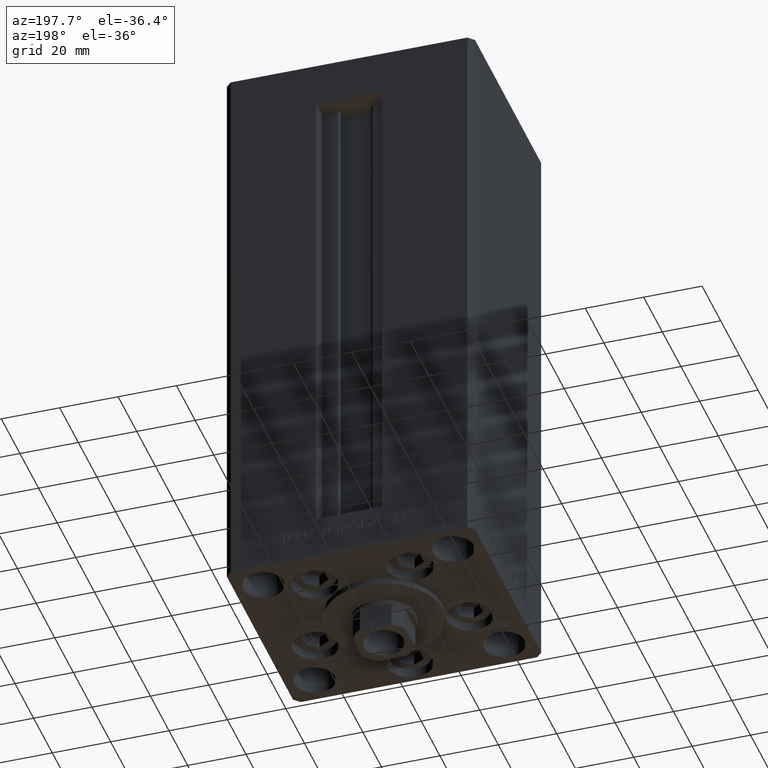
[diagram: clean part render]
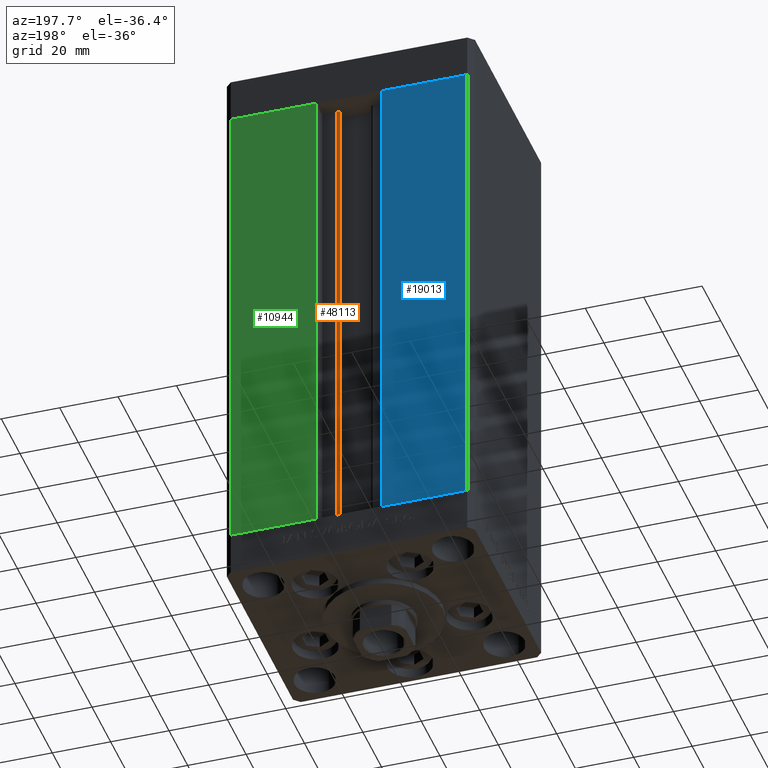
[diagram: same view with three faces highlighted in distinct colors, each labeled with its STEP entity id]
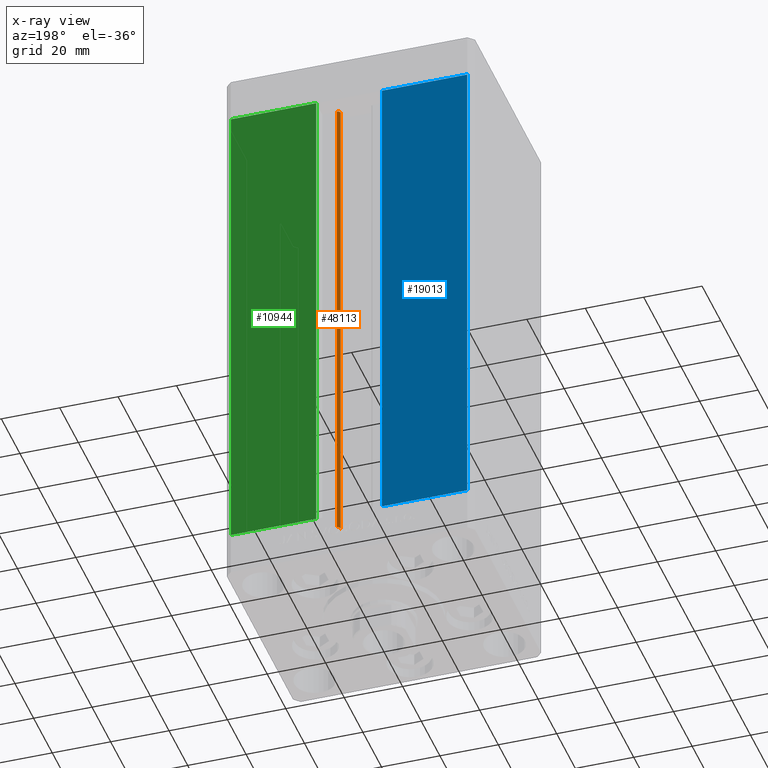
[diagram: x-ray of the same camera — body ghosted, the three highlighted faces saturated]
A machine part, auxiliary view with three faces highlighted in distinct colors.
The next image is the same camera in x-ray (body ghosted, the three faces saturated) — at least one of them is partly hidden behind the body in this view.
Their STEP definitions:

[orange] entity #48113 — the highlighted cylindrical surface (edge-blend (fillet) strip) has radius 0.9333 mm, axis along (0, 0, 1).
#1290 = FACE_OUTER_BOUND ( 'NONE', #26084, .T. ) ;
#1697 = CIRCLE ( 'NONE', #47542, 0.9333333333340015914 ) ;
#2614 = CARTESIAN_POINT ( 'NONE',  ( 6.183333333333999704, 30.06666666666599141, 168.5000000000000000 ) ) ;
#2852 = DIRECTION ( 'NONE',  ( 0.000000000000000000, 0.000000000000000000, -1.000000000000000000 ) ) ;
#3748 = ORIENTED_EDGE ( 'NONE', *, *, #39921, .T. ) ;
#4786 = AXIS2_PLACEMENT_3D ( 'NONE', #32641, #39840, #28910 ) ;
#6221 = ORIENTED_EDGE ( 'NONE', *, *, #34371, .F. ) ;
#6519 = VERTEX_POINT ( 'NONE', #45284 ) ;
#10560 = DIRECTION ( 'NONE',  ( -0.000000000000000000, -0.000000000000000000, 1.000000000000000000 ) ) ;
#10775 = DIRECTION ( 'NONE',  ( 1.000000000000000000, 0.000000000000000000, 0.000000000000000000 ) ) ;
#13931 = VERTEX_POINT ( 'NONE', #23306 ) ;
#16375 = CARTESIAN_POINT ( 'NONE',  ( 6.183333333333999704, 30.06666666666599141, 0.000000000000000000 ) ) ;
#16648 = DIRECTION ( 'NONE',  ( -0.000000000000000000, -0.000000000000000000, 1.000000000000000000 ) ) ;
#17327 = VECTOR ( 'NONE', #16648, 1000.000000000000000 ) ;
#17794 = VERTEX_POINT ( 'NONE', #46589 ) ;
#19815 = CIRCLE ( 'NONE', #4786, 0.9333333333340015914 ) ;
#21946 = CARTESIAN_POINT ( 'NONE',  ( 5.375042956467943611, 29.59999999999899245, 0.000000000000000000 ) ) ;
#23306 = CARTESIAN_POINT ( 'NONE',  ( 5.375042956467944499, 29.59999999999898890, 168.5000000000000000 ) ) ;
#23349 = ORIENTED_EDGE ( 'NONE', *, *, #42219, .T. ) ;
#23657 = ORIENTED_EDGE ( 'NONE', *, *, #38074, .F. ) ;
#26084 = EDGE_LOOP ( 'NONE', ( #6221, #23657, #23349, #3748 ) ) ;
#28910 = DIRECTION ( 'NONE',  ( 1.000000000000000000, 0.000000000000000000, 0.000000000000000000 ) ) ;
#29871 = LINE ( 'NONE', #21946, #34893 ) ;
#31485 = DIRECTION ( 'NONE',  ( 1.000000000000000000, 0.000000000000000000, 0.000000000000000000 ) ) ;
#32641 = CARTESIAN_POINT ( 'NONE',  ( 6.183333333333999704, 30.06666666666599141, 0.000000000000000000 ) ) ;
#34371 = EDGE_CURVE ( 'NONE', #38234, #17794, #42674, .T. ) ;
#34893 = VECTOR ( 'NONE', #10560, 1000.000000000000000 ) ;
#36196 = CARTESIAN_POINT ( 'NONE',  ( 6.183333333333999704, 30.99999999999999289, 0.000000000000000000 ) ) ;
#38074 = EDGE_CURVE ( 'NONE', #6519, #38234, #19815, .T. ) ;
#38204 = CYLINDRICAL_SURFACE ( 'NONE', #42164, 0.9333333333340015914 ) ;
#38234 = VERTEX_POINT ( 'NONE', #42786 ) ;
#38699 = DIRECTION ( 'NONE',  ( -0.000000000000000000, -0.000000000000000000, 1.000000000000000000 ) ) ;
#39840 = DIRECTION ( 'NONE',  ( -0.000000000000000000, -0.000000000000000000, -1.000000000000000000 ) ) ;
#39921 = EDGE_CURVE ( 'NONE', #13931, #17794, #1697, .T. ) ;
#42164 = AXIS2_PLACEMENT_3D ( 'NONE', #16375, #38699, #31485 ) ;
#42219 = EDGE_CURVE ( 'NONE', #6519, #13931, #29871, .T. ) ;
#42674 = LINE ( 'NONE', #36196, #17327 ) ;
#42786 = CARTESIAN_POINT ( 'NONE',  ( 6.183333333333999704, 30.99999999999999289, 0.000000000000000000 ) ) ;
#45284 = CARTESIAN_POINT ( 'NONE',  ( 5.375042956467943611, 29.59999999999899245, 0.000000000000000000 ) ) ;
#46589 = CARTESIAN_POINT ( 'NONE',  ( 6.183333333333999704, 30.99999999999999289, 168.5000000000000000 ) ) ;
#47542 = AXIS2_PLACEMENT_3D ( 'NONE', #2614, #2852, #10775 ) ;
#48113 = ADVANCED_FACE ( 'NONE', ( #1290 ), #38204, .T. ) ;

[blue] entity #19013 — the highlighted planar face has unit normal (-0, -1, 0).
#219 = LINE ( 'NONE', #42309, #2911 ) ;
#612 = DIRECTION ( 'NONE',  ( -0.000000000000000000, -0.000000000000000000, 1.000000000000000000 ) ) ;
#935 = DIRECTION ( 'NONE',  ( -0.000000000000000000, -0.000000000000000000, -1.000000000000000000 ) ) ;
#1512 = EDGE_CURVE ( 'NONE', #44774, #25458, #45181, .T. ) ;
#2109 = EDGE_CURVE ( 'NONE', #6078, #30039, #19974, .T. ) ;
#2911 = VECTOR ( 'NONE', #30415, 1000.000000000000000 ) ;
#3335 = CARTESIAN_POINT ( 'NONE',  ( -11.25000000000000000, 37.50000000000000000, 168.5000000000000000 ) ) ;
#5331 = DIRECTION ( 'NONE',  ( 1.000000000000000000, -2.372271420139223331E-16, 0.000000000000000000 ) ) ;
#6078 = VERTEX_POINT ( 'NONE', #7208 ) ;
#7208 = CARTESIAN_POINT ( 'NONE',  ( -40.50000000000000000, 37.50000000000000711, 168.5000000000000000 ) ) ;
#11746 = LINE ( 'NONE', #3335, #18305 ) ;
#13012 = FACE_OUTER_BOUND ( 'NONE', #24192, .T. ) ;
#14192 = AXIS2_PLACEMENT_3D ( 'NONE', #42265, #39276, #5331 ) ;
#14935 = CARTESIAN_POINT ( 'NONE',  ( -11.25000000000000000, 37.50000000000000000, 168.5000000000000000 ) ) ;
#15217 = CARTESIAN_POINT ( 'NONE',  ( -11.25000000000000000, 37.50000000000000000, 0.000000000000000000 ) ) ;
#15379 = VECTOR ( 'NONE', #935, 1000.000000000000000 ) ;
#16036 = CARTESIAN_POINT ( 'NONE',  ( -40.50000000000000000, 37.50000000000000711, 0.000000000000000000 ) ) ;
#18305 = VECTOR ( 'NONE', #30558, 1000.000000000000000 ) ;
#19013 = ADVANCED_FACE ( 'NONE', ( #13012 ), #42757, .F. ) ;
#19974 = LINE ( 'NONE', #34359, #15379 ) ;
#21271 = ORIENTED_EDGE ( 'NONE', *, *, #1512, .F. ) ;
#24048 = VECTOR ( 'NONE', #612, 1000.000000000000000 ) ;
#24192 = EDGE_LOOP ( 'NONE', ( #39796, #21271, #26679, #44167 ) ) ;
#25458 = VERTEX_POINT ( 'NONE', #14935 ) ;
#26097 = EDGE_CURVE ( 'NONE', #44774, #30039, #219, .T. ) ;
#26679 = ORIENTED_EDGE ( 'NONE', *, *, #26097, .T. ) ;
#30039 = VERTEX_POINT ( 'NONE', #16036 ) ;
#30415 = DIRECTION ( 'NONE',  ( -1.000000000000000000, 2.372271420139223331E-16, 0.000000000000000000 ) ) ;
#30558 = DIRECTION ( 'NONE',  ( 1.000000000000000000, 0.000000000000000000, 0.000000000000000000 ) ) ;
#34359 = CARTESIAN_POINT ( 'NONE',  ( -40.50000000000000000, 37.50000000000000711, 168.5000000000000000 ) ) ;
#39276 = DIRECTION ( 'NONE',  ( -2.372271420139223331E-16, -1.000000000000000000, 0.000000000000000000 ) ) ;
#39796 = ORIENTED_EDGE ( 'NONE', *, *, #45293, .T. ) ;
#42265 = CARTESIAN_POINT ( 'NONE',  ( -11.25000000000000000, 37.50000000000000000, 168.5000000000000000 ) ) ;
#42309 = CARTESIAN_POINT ( 'NONE',  ( -11.25000000000000000, 37.50000000000000000, 0.000000000000000000 ) ) ;
#42757 = PLANE ( 'NONE',  #14192 ) ;
#43767 = CARTESIAN_POINT ( 'NONE',  ( -11.25000000000000000, 37.50000000000000000, 0.000000000000000000 ) ) ;
#44167 = ORIENTED_EDGE ( 'NONE', *, *, #2109, .F. ) ;
#44774 = VERTEX_POINT ( 'NONE', #43767 ) ;
#45181 = LINE ( 'NONE', #15217, #24048 ) ;
#45293 = EDGE_CURVE ( 'NONE', #6078, #25458, #11746, .T. ) ;

[green] entity #10944 — the highlighted planar face has unit normal (-0, -1, 0).
#2281 = VERTEX_POINT ( 'NONE', #38023 ) ;
#5144 = ORIENTED_EDGE ( 'NONE', *, *, #45102, .T. ) ;
#6395 = FACE_OUTER_BOUND ( 'NONE', #44790, .T. ) ;
#6429 = VECTOR ( 'NONE', #40404, 1000.000000000000000 ) ;
#10897 = VERTEX_POINT ( 'NONE', #27737 ) ;
#10944 = ADVANCED_FACE ( 'NONE', ( #6395 ), #18024, .F. ) ;
#13727 = DIRECTION ( 'NONE',  ( 1.000000000000000000, 0.000000000000000000, 0.000000000000000000 ) ) ;
#14036 = DIRECTION ( 'NONE',  ( -1.000000000000000000, 2.372271420139223331E-16, 0.000000000000000000 ) ) ;
#14229 = LINE ( 'NONE', #48151, #22272 ) ;
#14280 = CARTESIAN_POINT ( 'NONE',  ( 40.50000000000000000, 37.50000000000000711, 168.5000000000000000 ) ) ;
#14634 = CARTESIAN_POINT ( 'NONE',  ( 40.50000000000000000, 37.50000000000000711, 168.5000000000000000 ) ) ;
#14845 = AXIS2_PLACEMENT_3D ( 'NONE', #36377, #44286, #17541 ) ;
#15383 = LINE ( 'NONE', #25600, #40220 ) ;
#16302 = EDGE_CURVE ( 'NONE', #18876, #21194, #15383, .T. ) ;
#17541 = DIRECTION ( 'NONE',  ( 1.000000000000000000, -2.372271420139223331E-16, 0.000000000000000000 ) ) ;
#18024 = PLANE ( 'NONE',  #14845 ) ;
#18876 = VERTEX_POINT ( 'NONE', #30370 ) ;
#19202 = VECTOR ( 'NONE', #14036, 1000.000000000000000 ) ;
#21194 = VERTEX_POINT ( 'NONE', #14280 ) ;
#21216 = CARTESIAN_POINT ( 'NONE',  ( -11.25000000000000000, 37.50000000000000000, 0.000000000000000000 ) ) ;
#22272 = VECTOR ( 'NONE', #43477, 1000.000000000000000 ) ;
#23723 = EDGE_CURVE ( 'NONE', #2281, #10897, #47953, .T. ) ;
#25283 = LINE ( 'NONE', #14634, #6429 ) ;
#25600 = CARTESIAN_POINT ( 'NONE',  ( -11.25000000000000000, 37.50000000000000000, 168.5000000000000000 ) ) ;
#27664 = ORIENTED_EDGE ( 'NONE', *, *, #23723, .T. ) ;
#27737 = CARTESIAN_POINT ( 'NONE',  ( 11.25000000000000000, 37.50000000000000000, 0.000000000000000000 ) ) ;
#30370 = CARTESIAN_POINT ( 'NONE',  ( 11.24999999999999289, 37.50000000000000000, 168.5000000000000000 ) ) ;
#32282 = ORIENTED_EDGE ( 'NONE', *, *, #16302, .T. ) ;
#36377 = CARTESIAN_POINT ( 'NONE',  ( -11.25000000000000000, 37.50000000000000000, 168.5000000000000000 ) ) ;
#36652 = ORIENTED_EDGE ( 'NONE', *, *, #41952, .T. ) ;
#38023 = CARTESIAN_POINT ( 'NONE',  ( 40.50000000000000000, 37.50000000000000711, 0.000000000000000000 ) ) ;
#40220 = VECTOR ( 'NONE', #13727, 1000.000000000000000 ) ;
#40404 = DIRECTION ( 'NONE',  ( -0.000000000000000000, -0.000000000000000000, -1.000000000000000000 ) ) ;
#41952 = EDGE_CURVE ( 'NONE', #21194, #2281, #25283, .T. ) ;
#43477 = DIRECTION ( 'NONE',  ( -0.000000000000000000, -0.000000000000000000, 1.000000000000000000 ) ) ;
#44286 = DIRECTION ( 'NONE',  ( -2.372271420139223331E-16, -1.000000000000000000, 0.000000000000000000 ) ) ;
#44790 = EDGE_LOOP ( 'NONE', ( #27664, #5144, #32282, #36652 ) ) ;
#45102 = EDGE_CURVE ( 'NONE', #10897, #18876, #14229, .T. ) ;
#47953 = LINE ( 'NONE', #21216, #19202 ) ;
#48151 = CARTESIAN_POINT ( 'NONE',  ( 11.25000000000000000, 37.50000000000000000, 0.000000000000000000 ) ) ;